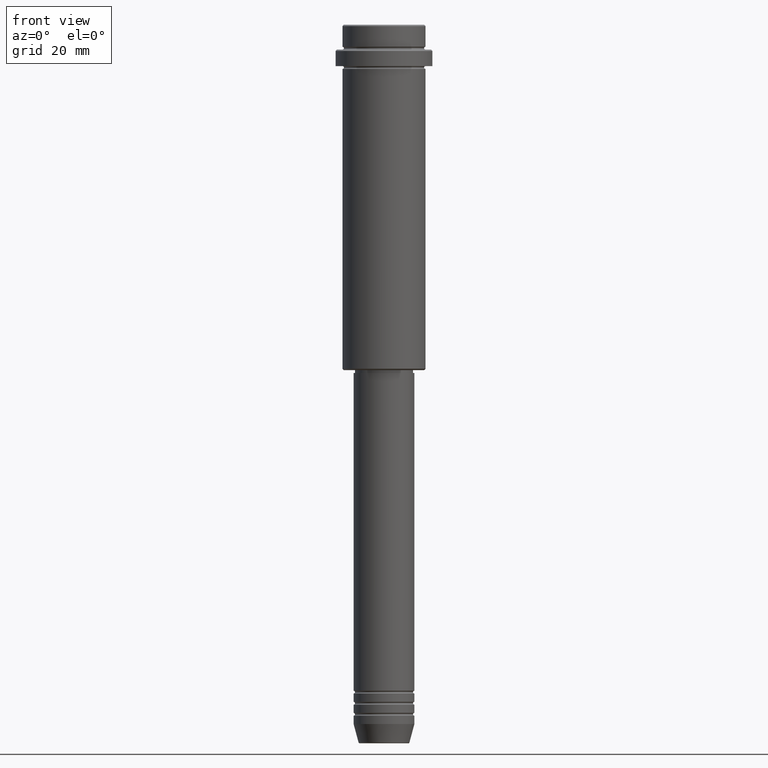
[diagram: clean part render]
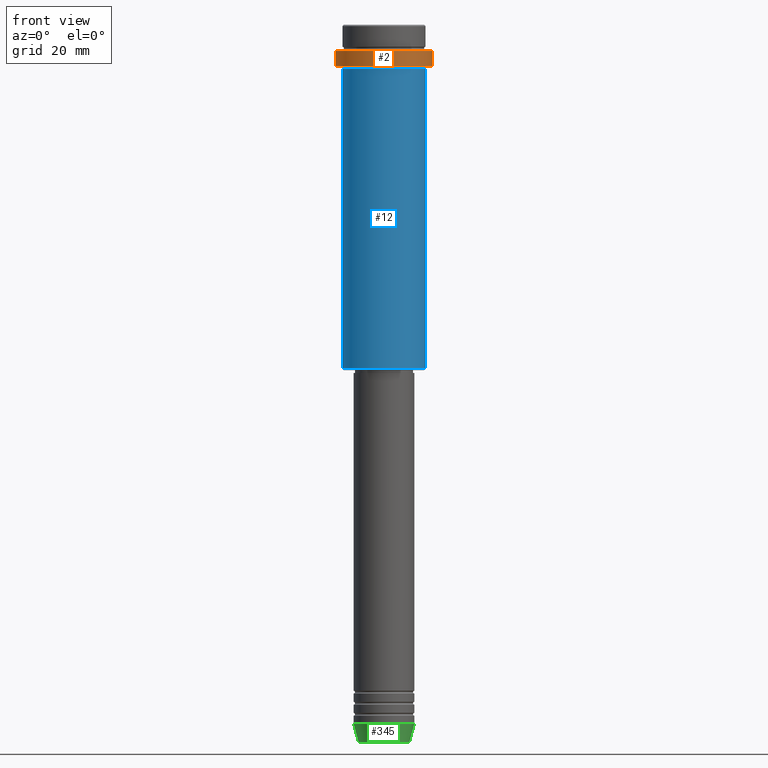
[diagram: same view with three faces highlighted in distinct colors, each labeled with its STEP entity id]
A machine part, front view with three faces highlighted in distinct colors.
Their STEP definitions:

[orange] entity #2 — the highlighted cylindrical surface (partial cylindrical patch) has radius 17.5 mm, axis along (-0, -0, 1).
#2 = ADVANCED_FACE ( 'NONE', ( #459 ), #471, .T. ) ;
#55 = DIRECTION ( 'NONE',  ( -0.000000000000000000, -0.000000000000000000, 1.000000000000000000 ) ) ;
#66 = VECTOR ( 'NONE', #55, 1000.000000000000000 ) ;
#94 = VECTOR ( 'NONE', #1186, 1000.000000000000000 ) ;
#148 = LINE ( 'NONE', #1033, #66 ) ;
#161 = DIRECTION ( 'NONE',  ( 1.000000000000000000, 0.000000000000000000, 0.000000000000000000 ) ) ;
#168 = CARTESIAN_POINT ( 'NONE',  ( -17.50000000000000000, 2.143131898507868248E-15, -9.500000000000001776 ) ) ;
#191 = VERTEX_POINT ( 'NONE', #168 ) ;
#214 = VERTEX_POINT ( 'NONE', #658 ) ;
#240 = DIRECTION ( 'NONE',  ( 1.000000000000000000, 0.000000000000000000, 0.000000000000000000 ) ) ;
#284 = VERTEX_POINT ( 'NONE', #981 ) ;
#315 = ORIENTED_EDGE ( 'NONE', *, *, #529, .T. ) ;
#428 = DIRECTION ( 'NONE',  ( -0.000000000000000000, -0.000000000000000000, 1.000000000000000000 ) ) ;
#459 = FACE_OUTER_BOUND ( 'NONE', #1138, .T. ) ;
#471 = CYLINDRICAL_SURFACE ( 'NONE', #1329, 17.50000000000000000 ) ;
#492 = DIRECTION ( 'NONE',  ( 0.000000000000000000, 0.000000000000000000, -1.000000000000000000 ) ) ;
#529 = EDGE_CURVE ( 'NONE', #214, #191, #1012, .T. ) ;
#578 = CIRCLE ( 'NONE', #690, 17.50000000000000000 ) ;
#605 = EDGE_CURVE ( 'NONE', #284, #214, #148, .T. ) ;
#628 = VERTEX_POINT ( 'NONE', #1356 ) ;
#658 = CARTESIAN_POINT ( 'NONE',  ( 17.50000000000000000, 0.000000000000000000, -9.500000000000001776 ) ) ;
#660 = EDGE_CURVE ( 'NONE', #628, #191, #987, .T. ) ;
#669 = CARTESIAN_POINT ( 'NONE',  ( 0.000000000000000000, 0.000000000000000000, 0.000000000000000000 ) ) ;
#690 = AXIS2_PLACEMENT_3D ( 'NONE', #839, #428, #870 ) ;
#775 = ORIENTED_EDGE ( 'NONE', *, *, #1191, .T. ) ;
#808 = AXIS2_PLACEMENT_3D ( 'NONE', #1155, #492, #161 ) ;
#839 = CARTESIAN_POINT ( 'NONE',  ( 0.000000000000000000, 0.000000000000000000, -15.00000000000000178 ) ) ;
#870 = DIRECTION ( 'NONE',  ( 1.000000000000000000, 0.000000000000000000, 0.000000000000000000 ) ) ;
#905 = DIRECTION ( 'NONE',  ( -0.000000000000000000, -0.000000000000000000, 1.000000000000000000 ) ) ;
#981 = CARTESIAN_POINT ( 'NONE',  ( 17.50000000000000000, 0.000000000000000000, -15.00000000000000178 ) ) ;
#987 = LINE ( 'NONE', #1076, #94 ) ;
#1012 = CIRCLE ( 'NONE', #808, 17.50000000000000000 ) ;
#1033 = CARTESIAN_POINT ( 'NONE',  ( 17.50000000000000000, 0.000000000000000000, 0.000000000000000000 ) ) ;
#1076 = CARTESIAN_POINT ( 'NONE',  ( -17.50000000000000000, 2.143131898507868248E-15, 0.000000000000000000 ) ) ;
#1081 = ORIENTED_EDGE ( 'NONE', *, *, #660, .F. ) ;
#1138 = EDGE_LOOP ( 'NONE', ( #1081, #775, #1346, #315 ) ) ;
#1155 = CARTESIAN_POINT ( 'NONE',  ( 0.000000000000000000, 0.000000000000000000, -9.500000000000001776 ) ) ;
#1186 = DIRECTION ( 'NONE',  ( -0.000000000000000000, -0.000000000000000000, 1.000000000000000000 ) ) ;
#1191 = EDGE_CURVE ( 'NONE', #628, #284, #578, .T. ) ;
#1329 = AXIS2_PLACEMENT_3D ( 'NONE', #669, #905, #240 ) ;
#1346 = ORIENTED_EDGE ( 'NONE', *, *, #605, .T. ) ;
#1356 = CARTESIAN_POINT ( 'NONE',  ( -17.50000000000000000, 2.143131898507868248E-15, -15.00000000000000178 ) ) ;

[blue] entity #12 — the highlighted cylindrical surface (partial cylindrical patch) has radius 15 mm, axis along (-0, -0, 1).
#12 = ADVANCED_FACE ( 'NONE', ( #452 ), #920, .T. ) ;
#18 = VERTEX_POINT ( 'NONE', #362 ) ;
#38 = DIRECTION ( 'NONE',  ( 1.000000000000000000, 0.000000000000000000, 0.000000000000000000 ) ) ;
#137 = VERTEX_POINT ( 'NONE', #392 ) ;
#142 = CIRCLE ( 'NONE', #366, 15.00000000000000000 ) ;
#209 = DIRECTION ( 'NONE',  ( -0.000000000000000000, -0.000000000000000000, 1.000000000000000000 ) ) ;
#227 = ORIENTED_EDGE ( 'NONE', *, *, #778, .F. ) ;
#255 = CARTESIAN_POINT ( 'NONE',  ( -15.00000000000000000, 1.836970198721029589E-15, -124.4999999999999574 ) ) ;
#293 = VERTEX_POINT ( 'NONE', #1096 ) ;
#295 = VECTOR ( 'NONE', #960, 1000.000000000000000 ) ;
#336 = CARTESIAN_POINT ( 'NONE',  ( 0.000000000000000000, 0.000000000000000000, 0.000000000000000000 ) ) ;
#362 = CARTESIAN_POINT ( 'NONE',  ( 15.00000000000000178, 0.000000000000000000, -16.00000000000000000 ) ) ;
#366 = AXIS2_PLACEMENT_3D ( 'NONE', #425, #209, #875 ) ;
#374 = EDGE_CURVE ( 'NONE', #293, #18, #637, .T. ) ;
#386 = CARTESIAN_POINT ( 'NONE',  ( 15.00000000000000000, 0.000000000000000000, 0.000000000000000000 ) ) ;
#392 = CARTESIAN_POINT ( 'NONE',  ( 15.00000000000000000, 0.000000000000000000, -124.4999999999999574 ) ) ;
#425 = CARTESIAN_POINT ( 'NONE',  ( 0.000000000000000000, 0.000000000000000000, -124.4999999999999574 ) ) ;
#438 = AXIS2_PLACEMENT_3D ( 'NONE', #803, #565, #38 ) ;
#452 = FACE_OUTER_BOUND ( 'NONE', #1312, .T. ) ;
#516 = CARTESIAN_POINT ( 'NONE',  ( -15.00000000000000000, 1.836970198721029589E-15, 0.000000000000000000 ) ) ;
#565 = DIRECTION ( 'NONE',  ( -0.000000000000000000, -0.000000000000000000, 1.000000000000000000 ) ) ;
#637 = CIRCLE ( 'NONE', #438, 15.00000000000000178 ) ;
#728 = ORIENTED_EDGE ( 'NONE', *, *, #1293, .T. ) ;
#740 = VECTOR ( 'NONE', #1257, 1000.000000000000000 ) ;
#761 = AXIS2_PLACEMENT_3D ( 'NONE', #336, #784, #1350 ) ;
#778 = EDGE_CURVE ( 'NONE', #993, #293, #1178, .T. ) ;
#784 = DIRECTION ( 'NONE',  ( -0.000000000000000000, -0.000000000000000000, 1.000000000000000000 ) ) ;
#803 = CARTESIAN_POINT ( 'NONE',  ( 0.000000000000000000, 0.000000000000000000, -16.00000000000000000 ) ) ;
#824 = LINE ( 'NONE', #386, #740 ) ;
#875 = DIRECTION ( 'NONE',  ( -1.000000000000000000, 0.000000000000000000, 0.000000000000000000 ) ) ;
#888 = ORIENTED_EDGE ( 'NONE', *, *, #1066, .T. ) ;
#920 = CYLINDRICAL_SURFACE ( 'NONE', #761, 15.00000000000000000 ) ;
#960 = DIRECTION ( 'NONE',  ( -0.000000000000000000, -0.000000000000000000, 1.000000000000000000 ) ) ;
#993 = VERTEX_POINT ( 'NONE', #255 ) ;
#1066 = EDGE_CURVE ( 'NONE', #137, #18, #824, .T. ) ;
#1096 = CARTESIAN_POINT ( 'NONE',  ( -15.00000000000000355, 1.836970198721029983E-15, -16.00000000000000000 ) ) ;
#1126 = ORIENTED_EDGE ( 'NONE', *, *, #374, .F. ) ;
#1178 = LINE ( 'NONE', #516, #295 ) ;
#1257 = DIRECTION ( 'NONE',  ( -0.000000000000000000, -0.000000000000000000, 1.000000000000000000 ) ) ;
#1293 = EDGE_CURVE ( 'NONE', #993, #137, #142, .T. ) ;
#1312 = EDGE_LOOP ( 'NONE', ( #227, #728, #888, #1126 ) ) ;
#1350 = DIRECTION ( 'NONE',  ( 1.000000000000000000, 0.000000000000000000, 0.000000000000000000 ) ) ;

[green] entity #345 — the highlighted conical surface has half-angle 15 deg.
#5 = DIRECTION ( 'NONE',  ( -0.000000000000000000, -0.000000000000000000, 1.000000000000000000 ) ) ;
#82 = VERTEX_POINT ( 'NONE', #1362 ) ;
#87 = DIRECTION ( 'NONE',  ( 0.2588190451025213501, 0.000000000000000000, 0.9659258262890680902 ) ) ;
#125 = VERTEX_POINT ( 'NONE', #1042 ) ;
#157 = EDGE_CURVE ( 'NONE', #347, #1189, #620, .T. ) ;
#291 = DIRECTION ( 'NONE',  ( -0.000000000000000000, -0.000000000000000000, 1.000000000000000000 ) ) ;
#335 = EDGE_CURVE ( 'NONE', #1189, #125, #939, .T. ) ;
#345 = ADVANCED_FACE ( 'NONE', ( #543 ), #1398, .T. ) ;
#347 = VERTEX_POINT ( 'NONE', #886 ) ;
#409 = CARTESIAN_POINT ( 'NONE',  ( 11.00000000000000000, 0.000000000000000000, -253.0000000000000000 ) ) ;
#433 = ORIENTED_EDGE ( 'NONE', *, *, #335, .F. ) ;
#435 = VECTOR ( 'NONE', #1149, 1000.000000000000000 ) ;
#440 = DIRECTION ( 'NONE',  ( 1.000000000000000000, 0.000000000000000000, 0.000000000000000000 ) ) ;
#496 = AXIS2_PLACEMENT_3D ( 'NONE', #988, #5, #440 ) ;
#499 = CIRCLE ( 'NONE', #832, 9.223655072137189492 ) ;
#543 = FACE_OUTER_BOUND ( 'NONE', #612, .T. ) ;
#577 = ORIENTED_EDGE ( 'NONE', *, *, #157, .F. ) ;
#612 = EDGE_LOOP ( 'NONE', ( #577, #1245, #857, #433 ) ) ;
#620 = LINE ( 'NONE', #700, #435 ) ;
#700 = CARTESIAN_POINT ( 'NONE',  ( -11.00000000000000000, 1.347111479062088405E-15, -253.0000000000000000 ) ) ;
#739 = DIRECTION ( 'NONE',  ( 1.000000000000000000, 0.000000000000000000, 0.000000000000000000 ) ) ;
#832 = AXIS2_PLACEMENT_3D ( 'NONE', #1394, #291, #739 ) ;
#857 = ORIENTED_EDGE ( 'NONE', *, *, #1125, .T. ) ;
#886 = CARTESIAN_POINT ( 'NONE',  ( -9.223655072137189492, 1.238341722557647202E-15, -259.6294095225512706 ) ) ;
#902 = AXIS2_PLACEMENT_3D ( 'NONE', #1089, #1415, #1202 ) ;
#921 = VECTOR ( 'NONE', #87, 1000.000000000000000 ) ;
#939 = CIRCLE ( 'NONE', #902, 11.00000000000000000 ) ;
#988 = CARTESIAN_POINT ( 'NONE',  ( 0.000000000000000000, 0.000000000000000000, -253.0000000000000000 ) ) ;
#1042 = CARTESIAN_POINT ( 'NONE',  ( 11.00000000000000000, 0.000000000000000000, -253.0000000000000000 ) ) ;
#1089 = CARTESIAN_POINT ( 'NONE',  ( 0.000000000000000000, 0.000000000000000000, -253.0000000000000000 ) ) ;
#1116 = EDGE_CURVE ( 'NONE', #347, #82, #499, .T. ) ;
#1125 = EDGE_CURVE ( 'NONE', #82, #125, #1190, .T. ) ;
#1149 = DIRECTION ( 'NONE',  ( -0.2588190451025213501, 3.169619151431772337E-17, 0.9659258262890680902 ) ) ;
#1189 = VERTEX_POINT ( 'NONE', #1412 ) ;
#1190 = LINE ( 'NONE', #409, #921 ) ;
#1202 = DIRECTION ( 'NONE',  ( 1.000000000000000000, 0.000000000000000000, 0.000000000000000000 ) ) ;
#1245 = ORIENTED_EDGE ( 'NONE', *, *, #1116, .T. ) ;
#1362 = CARTESIAN_POINT ( 'NONE',  ( 9.223655072137189492, 0.000000000000000000, -259.6294095225512706 ) ) ;
#1394 = CARTESIAN_POINT ( 'NONE',  ( 0.000000000000000000, 0.000000000000000000, -259.6294095225512706 ) ) ;
#1398 = CONICAL_SURFACE ( 'NONE', #496, 11.00000000000000000, 0.2617993877991500740 ) ;
#1412 = CARTESIAN_POINT ( 'NONE',  ( -11.00000000000000000, 1.347111479062088405E-15, -253.0000000000000000 ) ) ;
#1415 = DIRECTION ( 'NONE',  ( -0.000000000000000000, -0.000000000000000000, 1.000000000000000000 ) ) ;